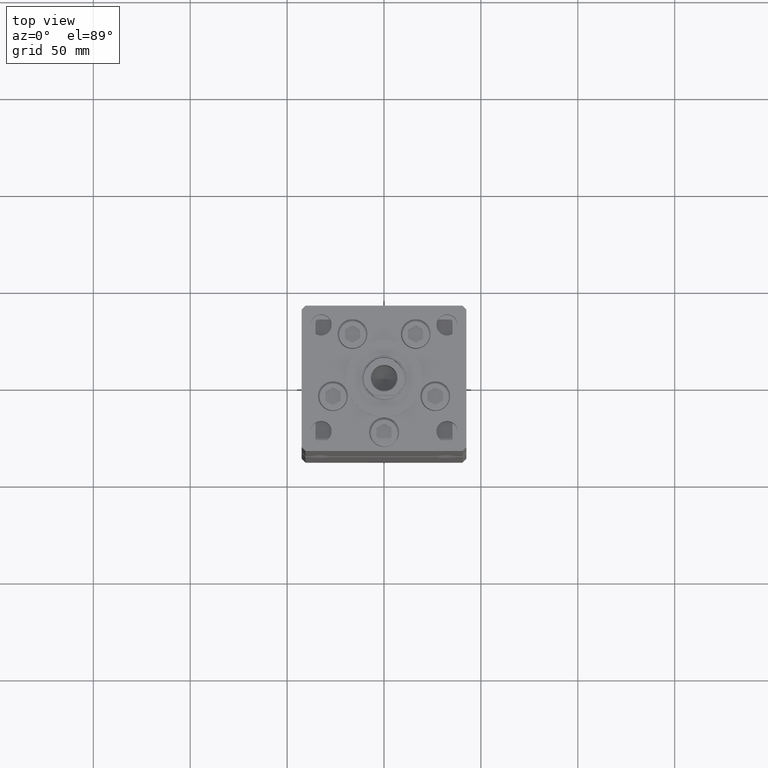
[diagram: clean part render]
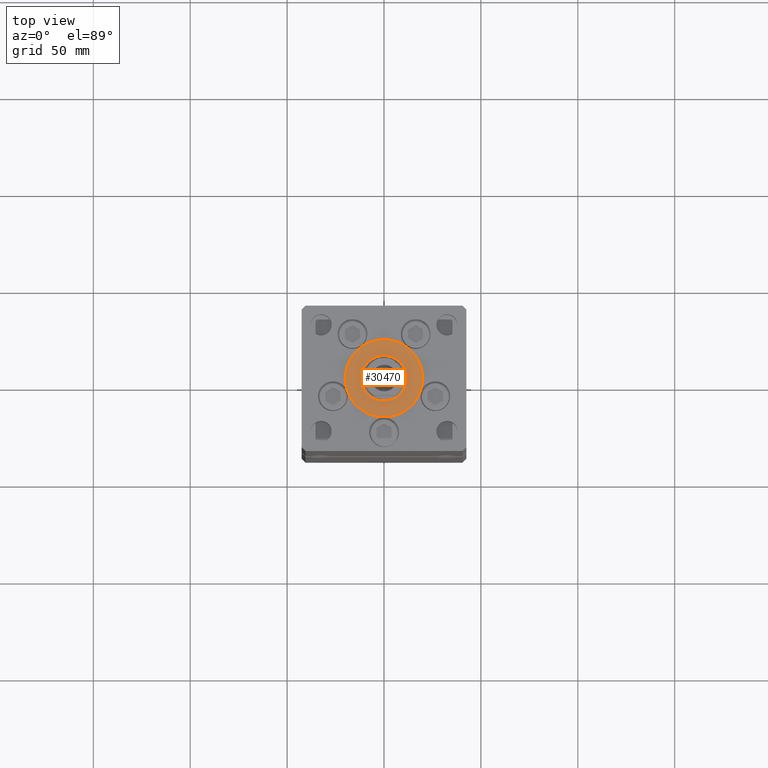
[diagram: same view with one face highlighted and labeled with its STEP entity id]
A machine part, top view. The second image highlights one B-rep face of the part: STEP entity #30470.
In plain terms, the highlighted planar face has unit normal (0, 0, 1).
Its self-contained STEP definition (entity closure, byte-faithful):
#1175 = DIRECTION ( 'NONE',  ( 0.000000000000000000, 0.000000000000000000, 1.000000000000000000 ) ) ;
#1333 = DIRECTION ( 'NONE',  ( 1.000000000000000000, 0.000000000000000000, 0.000000000000000000 ) ) ;
#1499 = FACE_OUTER_BOUND ( 'NONE', #48600, .T. ) ;
#2732 = AXIS2_PLACEMENT_3D ( 'NONE', #17822, #1175, #46054 ) ;
#4467 = AXIS2_PLACEMENT_3D ( 'NONE', #50671, #46651, #9815 ) ;
#4990 = CIRCLE ( 'NONE', #17844, 11.75000000000000178 ) ;
#5557 = CIRCLE ( 'NONE', #26984, 20.00000000000000000 ) ;
#5728 = CARTESIAN_POINT ( 'NONE',  ( 0.000000000000000000, -6.938893903907228378E-15, 2.000000000000000000 ) ) ;
#5889 = EDGE_CURVE ( 'NONE', #26456, #26393, #49928, .T. ) ;
#9815 = DIRECTION ( 'NONE',  ( 1.000000000000000000, 0.000000000000000000, -0.000000000000000000 ) ) ;
#11543 = EDGE_CURVE ( 'NONE', #50899, #24120, #5557, .T. ) ;
#11740 = CIRCLE ( 'NONE', #19437, 20.00000000000000000 ) ;
#15688 = EDGE_CURVE ( 'NONE', #24120, #50899, #11740, .T. ) ;
#17467 = DIRECTION ( 'NONE',  ( 0.000000000000000000, 0.000000000000000000, 1.000000000000000000 ) ) ;
#17491 = CARTESIAN_POINT ( 'NONE',  ( 20.00000000000000000, -4.489600305612522259E-15, 2.000000000000000000 ) ) ;
#17822 = CARTESIAN_POINT ( 'NONE',  ( 0.000000000000000000, -6.938893903907228378E-15, 2.000000000000000000 ) ) ;
#17844 = AXIS2_PLACEMENT_3D ( 'NONE', #5728, #25370, #38494 ) ;
#18419 = PLANE ( 'NONE',  #4467 ) ;
#19437 = AXIS2_PLACEMENT_3D ( 'NONE', #35944, #48348, #28446 ) ;
#19742 = EDGE_CURVE ( 'NONE', #26393, #26456, #4990, .T. ) ;
#24120 = VERTEX_POINT ( 'NONE', #17491 ) ;
#25370 = DIRECTION ( 'NONE',  ( 0.000000000000000000, 0.000000000000000000, 1.000000000000000000 ) ) ;
#25770 = CARTESIAN_POINT ( 'NONE',  ( 0.000000000000000000, -6.938893903907228378E-15, 2.000000000000000000 ) ) ;
#25950 = FACE_BOUND ( 'NONE', #51613, .T. ) ;
#26393 = VERTEX_POINT ( 'NONE', #49723 ) ;
#26456 = VERTEX_POINT ( 'NONE', #51045 ) ;
#26984 = AXIS2_PLACEMENT_3D ( 'NONE', #25770, #17467, #1333 ) ;
#28446 = DIRECTION ( 'NONE',  ( 1.000000000000000000, 0.000000000000000000, 0.000000000000000000 ) ) ;
#30429 = CARTESIAN_POINT ( 'NONE',  ( -20.00000000000000000, -6.938893903907228378E-15, 2.000000000000000000 ) ) ;
#30470 = ADVANCED_FACE ( 'NONE', ( #25950, #1499 ), #18419, .T. ) ;
#35193 = ORIENTED_EDGE ( 'NONE', *, *, #11543, .T. ) ;
#35944 = CARTESIAN_POINT ( 'NONE',  ( 0.000000000000000000, -6.938893903907228378E-15, 2.000000000000000000 ) ) ;
#38494 = DIRECTION ( 'NONE',  ( 1.000000000000000000, 0.000000000000000000, 0.000000000000000000 ) ) ;
#40362 = ORIENTED_EDGE ( 'NONE', *, *, #15688, .T. ) ;
#41561 = ORIENTED_EDGE ( 'NONE', *, *, #19742, .F. ) ;
#44938 = ORIENTED_EDGE ( 'NONE', *, *, #5889, .F. ) ;
#46054 = DIRECTION ( 'NONE',  ( 1.000000000000000000, 0.000000000000000000, 0.000000000000000000 ) ) ;
#46651 = DIRECTION ( 'NONE',  ( 0.000000000000000000, 0.000000000000000000, 1.000000000000000000 ) ) ;
#48348 = DIRECTION ( 'NONE',  ( 0.000000000000000000, 0.000000000000000000, 1.000000000000000000 ) ) ;
#48600 = EDGE_LOOP ( 'NONE', ( #35193, #40362 ) ) ;
#49723 = CARTESIAN_POINT ( 'NONE',  ( -11.75000000000000178, -5.499933914909088809E-15, 2.000000000000000000 ) ) ;
#49928 = CIRCLE ( 'NONE', #2732, 11.75000000000000178 ) ;
#50671 = CARTESIAN_POINT ( 'NONE',  ( 0.000000000000000000, -6.938893903907228378E-15, 2.000000000000000000 ) ) ;
#50899 = VERTEX_POINT ( 'NONE', #30429 ) ;
#51045 = CARTESIAN_POINT ( 'NONE',  ( 11.75000000000000178, -6.938893903907228378E-15, 2.000000000000000000 ) ) ;
#51613 = EDGE_LOOP ( 'NONE', ( #44938, #41561 ) ) ;